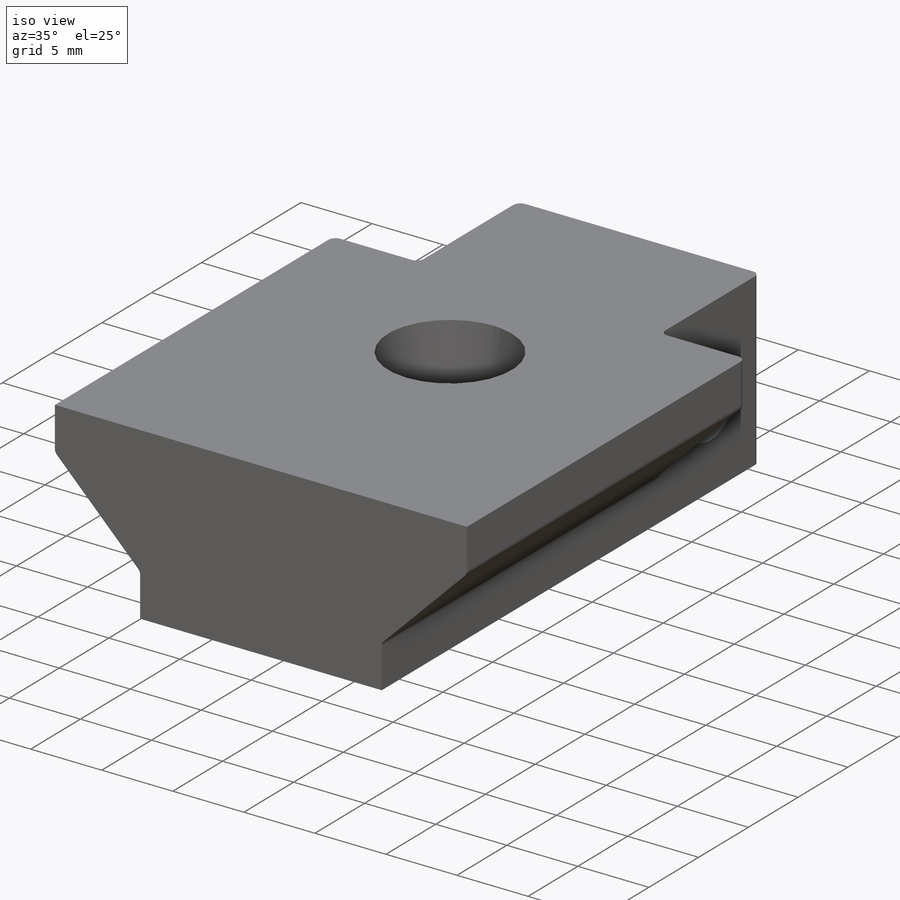
[diagram: iso view]
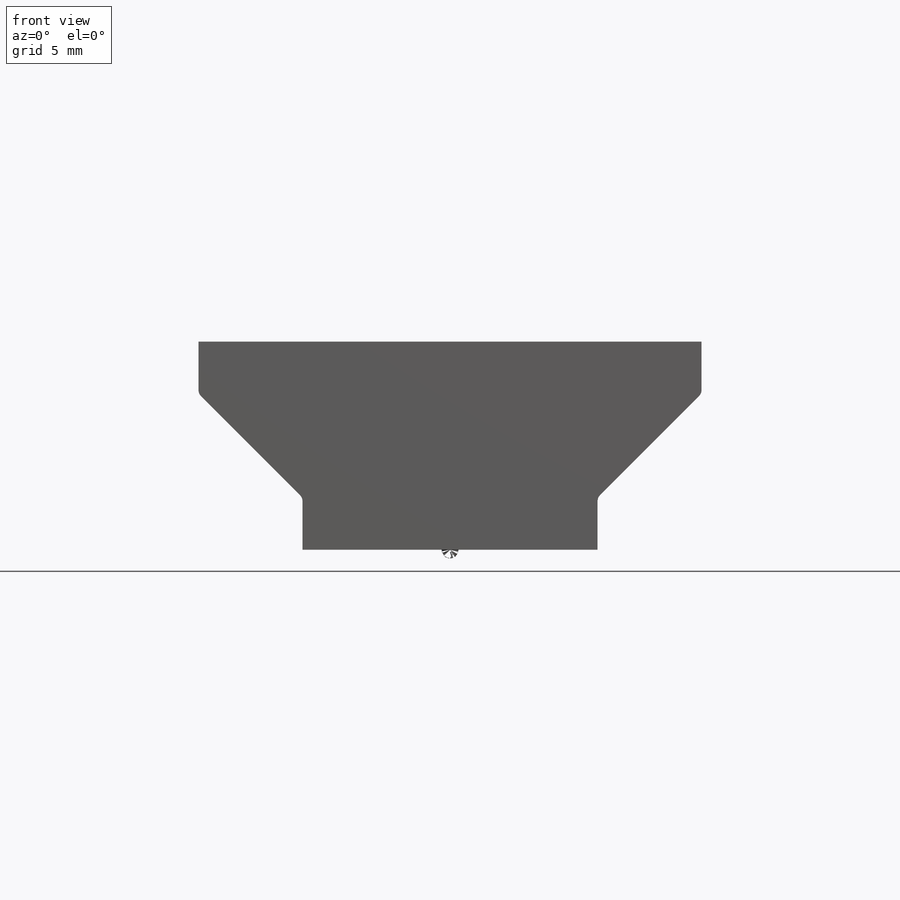
[diagram: front view]
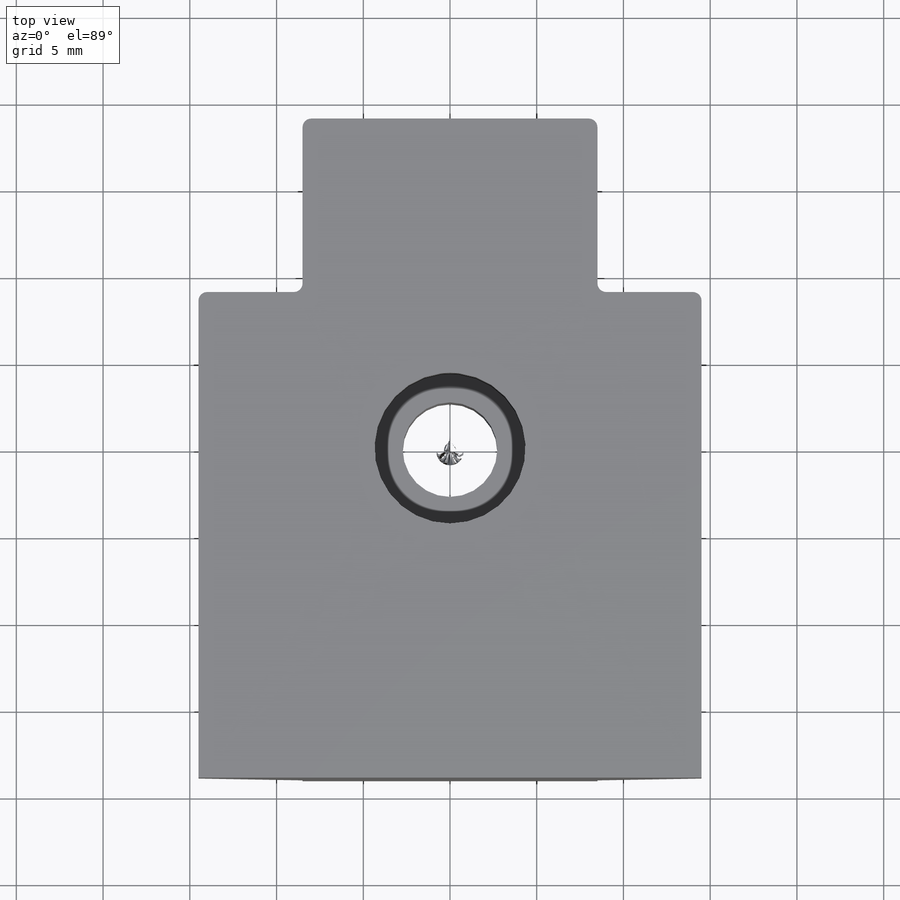
[diagram: top view]
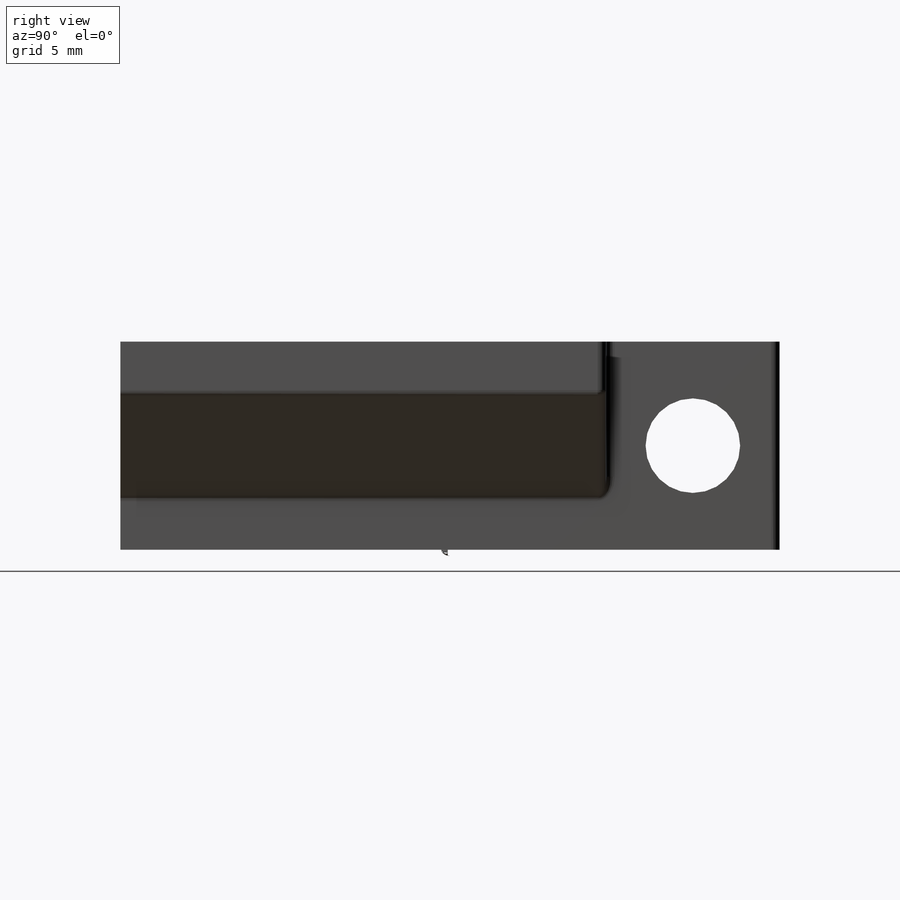
[diagram: right view]
SOLIDWORKS PART (.sldprt)
format: sldprt  version: not decoded by parser v0  size: 266,752 bytes
history: native  units: mm
features: sketch x5, material x1, extrude x1, cut_extrude x1, hole x1, fillet x1 (+12 scaffold rows collapsed)
feature tree (22):
  scaffold x12  (default folders/planes/origin — collapsed)
  material  "ABS"
  sketch  "Sketch1"  dims[c1.D1=10.0mm c1.D2=~6.409122mm c2.D2=45.0deg c2.D3=3.0mm c2.D4=~14.511515mm c2.D1=12.0mm c3.D2=3.0mm c3.D3=~5.973698mm c4.D3=45.0deg c4.D4=17.0mm]
  extrude  "Dovetail Body"  Depth=38mm
  sketch  "Sketch9"  dims[c1.D1=12.0mm c1.D2=6.0mm c2.D1=~16.178239mm]
  cut_extrude  "Bolt Clearance"  Depth=10mm
  sketch  "Sketch10"  dims[c1.D1=5.45mm c2.D1=~2.410913mm]
  sketch  "Sketch11"  dims[c1.D1=~30.096908mm c1.D2=~14.271345mm c2.D1=6.0mm c2.D2=6.0mm c2.D3=6.0mm]
  hole  "M5 Hole"  [1 undecoded]
  sketch  "Sketch12"  dims[c1.D1=8.7mm c2.D1=5.0mm]
  fillet  "Contouring"  Radius=0.5mm
decode coverage: 8 of 9 modeling features carry decoded parameters
note: ~ marks probable driven/reference dimensions
note: 1 parameter value undecoded
note: suppression state not decoded; provenance and decode notes live in map.json
